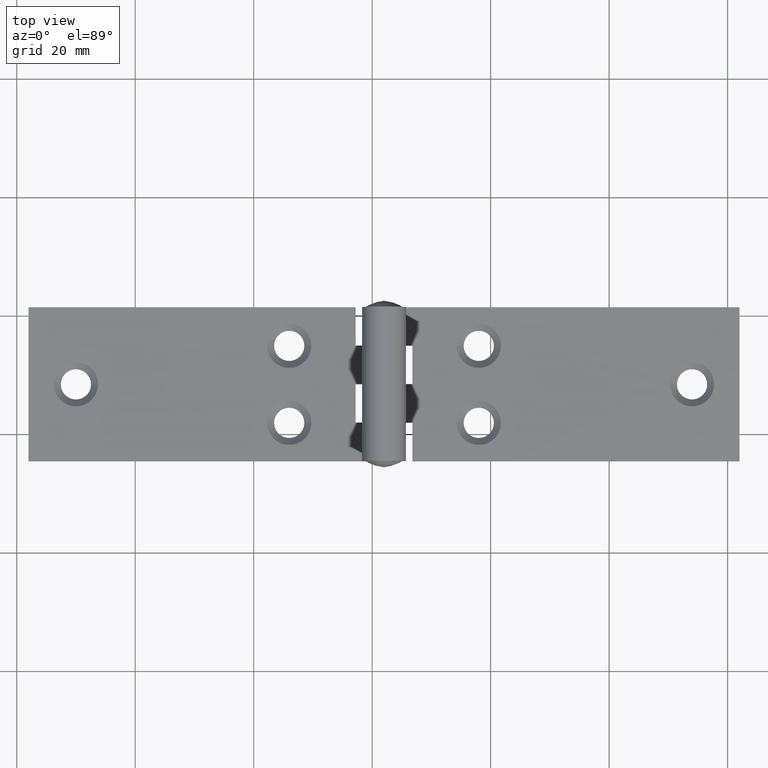
[diagram: clean part render]
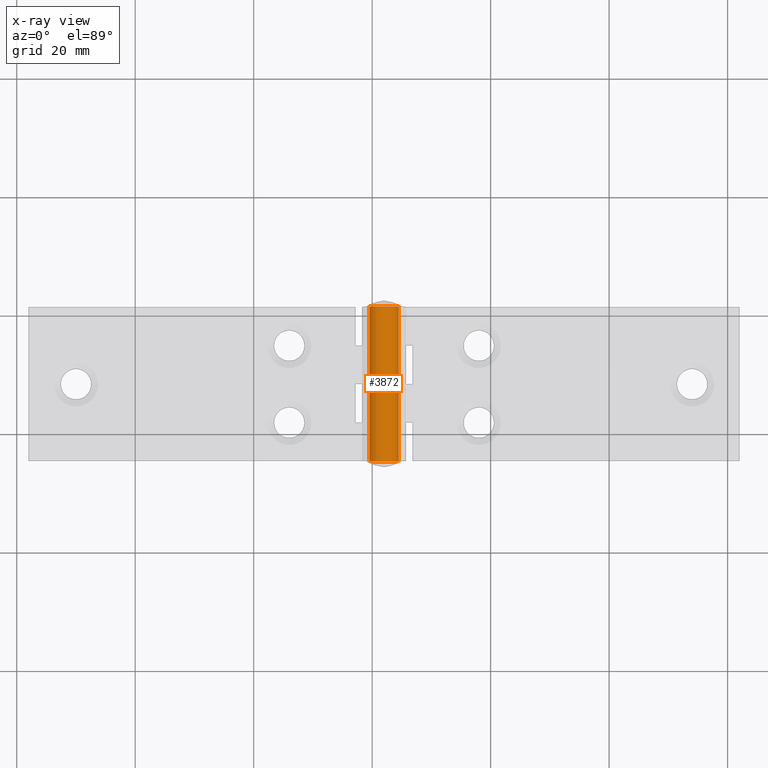
[diagram: x-ray — body ghosted, one internal face saturated and labeled with its STEP entity id]
A machine part, top view, then the same camera in x-ray: the body is ghosted and one INTERNAL B-rep face — a face not visible from any outside direction — is saturated and labeled: STEP entity #3872.
In plain terms, the highlighted cylindrical surface (bore or boss wall) has radius 2.5 mm, axis along (0, -1, 0).
Its self-contained STEP definition (entity closure, byte-faithful):
#711 = DIRECTION ( 'NONE',  ( 0.000000000000000000, 0.000000000000000000, -1.000000000000000000 ) ) ;
#1506 = CIRCLE ( 'NONE', #11339, 2.500000000000000000 ) ;
#1737 = FACE_OUTER_BOUND ( 'NONE', #8325, .T. ) ;
#1938 = EDGE_LOOP ( 'NONE', ( #8547 ) ) ;
#2017 = CYLINDRICAL_SURFACE ( 'NONE', #3713, 2.500000000000000000 ) ;
#2653 = CARTESIAN_POINT ( 'NONE',  ( 0.000000000000000000, 13.05000000000000071, 0.000000000000000000 ) ) ;
#3537 = DIRECTION ( 'NONE',  ( 0.000000000000000000, 1.000000000000000000, 0.000000000000000000 ) ) ;
#3713 = AXIS2_PLACEMENT_3D ( 'NONE', #5162, #4208, #711 ) ;
#3818 = FACE_OUTER_BOUND ( 'NONE', #1938, .T. ) ;
#3872 = ADVANCED_FACE ( 'NONE', ( #1737, #3818 ), #2017, .T. ) ;
#4208 = DIRECTION ( 'NONE',  ( -0.000000000000000000, -1.000000000000000000, -0.000000000000000000 ) ) ;
#4225 = CARTESIAN_POINT ( 'NONE',  ( 0.000000000000000000, 13.05000000000000071, 2.500000000000000000 ) ) ;
#5138 = VERTEX_POINT ( 'NONE', #7704 ) ;
#5162 = CARTESIAN_POINT ( 'NONE',  ( 0.000000000000000000, 13.05000000000000071, 0.000000000000000000 ) ) ;
#5389 = DIRECTION ( 'NONE',  ( 0.000000000000000000, 0.000000000000000000, 1.000000000000000000 ) ) ;
#6229 = VERTEX_POINT ( 'NONE', #4225 ) ;
#7140 = EDGE_CURVE ( 'NONE', #6229, #6229, #9882, .T. ) ;
#7704 = CARTESIAN_POINT ( 'NONE',  ( 0.000000000000000000, -13.05000000000000071, 2.500000000000000000 ) ) ;
#7750 = DIRECTION ( 'NONE',  ( 0.000000000000000000, 0.000000000000000000, 1.000000000000000000 ) ) ;
#8325 = EDGE_LOOP ( 'NONE', ( #11487 ) ) ;
#8547 = ORIENTED_EDGE ( 'NONE', *, *, #10793, .T. ) ;
#9325 = AXIS2_PLACEMENT_3D ( 'NONE', #2653, #3537, #5389 ) ;
#9882 = CIRCLE ( 'NONE', #9325, 2.500000000000000000 ) ;
#10325 = CARTESIAN_POINT ( 'NONE',  ( 0.000000000000000000, -13.05000000000000071, 0.000000000000000000 ) ) ;
#10793 = EDGE_CURVE ( 'NONE', #5138, #5138, #1506, .T. ) ;
#11148 = DIRECTION ( 'NONE',  ( -0.000000000000000000, 1.000000000000000000, -0.000000000000000000 ) ) ;
#11339 = AXIS2_PLACEMENT_3D ( 'NONE', #10325, #11148, #7750 ) ;
#11487 = ORIENTED_EDGE ( 'NONE', *, *, #7140, .F. ) ;